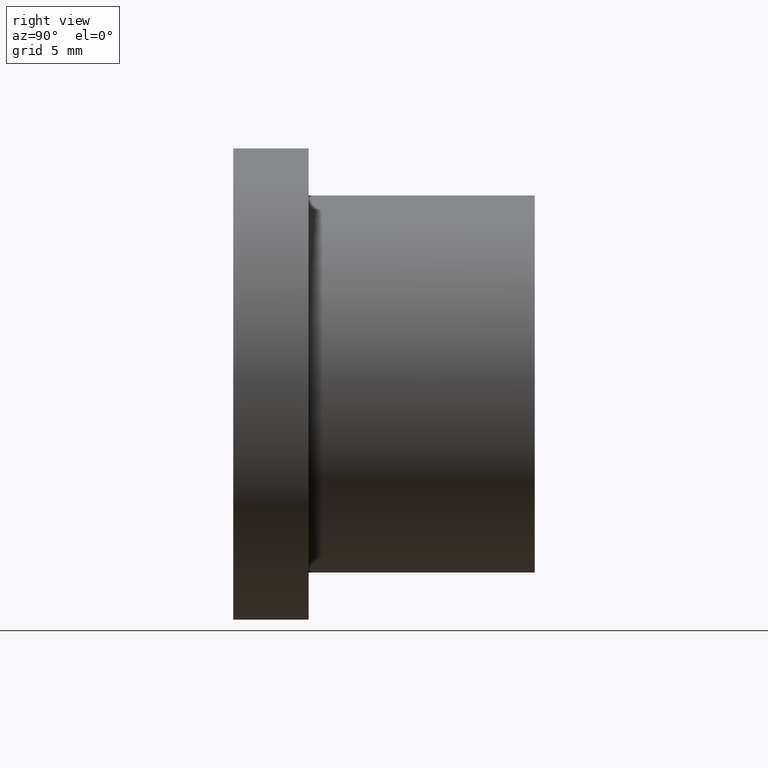
[diagram: clean part render]
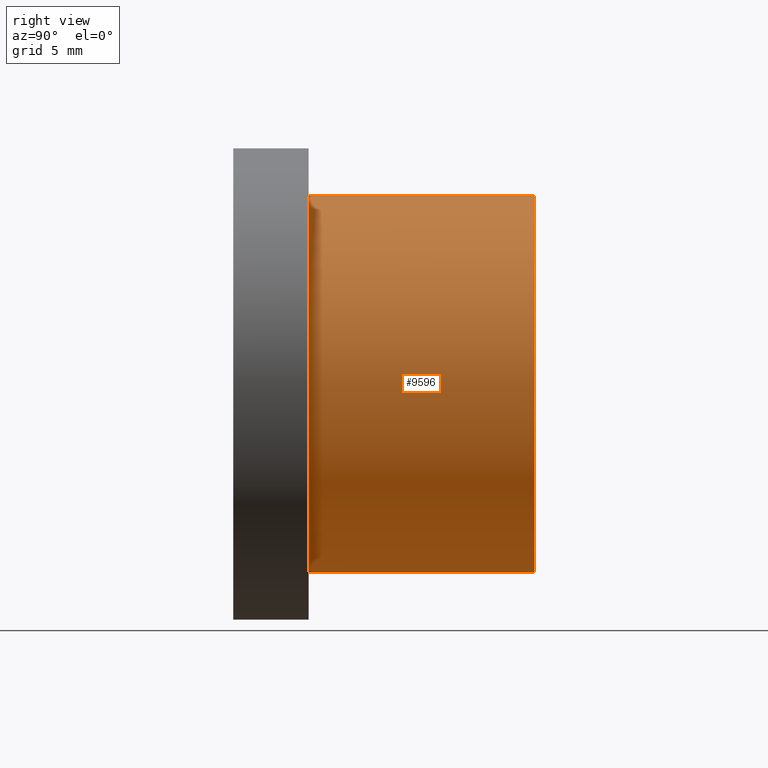
[diagram: same view with one face highlighted and labeled with its STEP entity id]
A machine part, right view. The second image highlights one B-rep face of the part: STEP entity #9596.
In plain terms, the highlighted cylindrical surface (bore or boss wall) has radius 10 mm, axis along (-0, -1, -0).
Its self-contained STEP definition (entity closure, byte-faithful):
#311 = EDGE_LOOP ( 'NONE', ( #10939 ) ) ;
#583 = AXIS2_PLACEMENT_3D ( 'NONE', #9425, #8403, #2266 ) ;
#822 = CARTESIAN_POINT ( 'NONE',  ( 0.0000000000000000000, 4.000000000000000000, 0.0000000000000000000 ) ) ;
#998 = CARTESIAN_POINT ( 'NONE',  ( 0.0000000000000000000, 0.0000000000000000000, 0.0000000000000000000 ) ) ;
#1191 = CIRCLE ( 'NONE', #3528, 9.999999999999998200 ) ;
#2266 = DIRECTION ( 'NONE',  ( 0.0000000000000000000, 0.0000000000000000000, -1.000000000000000000 ) ) ;
#2700 = EDGE_CURVE ( 'NONE', #8672, #8672, #4528, .T. ) ;
#2935 = ORIENTED_EDGE ( 'NONE', *, *, #7156, .F. ) ;
#3373 = DIRECTION ( 'NONE',  ( 0.0000000000000000000, 0.0000000000000000000, -1.000000000000000000 ) ) ;
#3528 = AXIS2_PLACEMENT_3D ( 'NONE', #822, #6195, #3373 ) ;
#3786 = DIRECTION ( 'NONE',  ( 0.0000000000000000000, 0.0000000000000000000, -1.000000000000000000 ) ) ;
#4268 = AXIS2_PLACEMENT_3D ( 'NONE', #998, #9993, #3786 ) ;
#4446 = FACE_OUTER_BOUND ( 'NONE', #311, .T. ) ;
#4528 = CIRCLE ( 'NONE', #583, 9.999999999999998200 ) ;
#5286 = CARTESIAN_POINT ( 'NONE',  ( 0.0000000000000000000, 16.00000000000000000, -9.999999999999998200 ) ) ;
#5450 = VERTEX_POINT ( 'NONE', #9600 ) ;
#6195 = DIRECTION ( 'NONE',  ( -0.0000000000000000000, -1.000000000000000000, -0.0000000000000000000 ) ) ;
#6378 = EDGE_LOOP ( 'NONE', ( #2935 ) ) ;
#7156 = EDGE_CURVE ( 'NONE', #5450, #5450, #1191, .T. ) ;
#8403 = DIRECTION ( 'NONE',  ( -0.0000000000000000000, -1.000000000000000000, -0.0000000000000000000 ) ) ;
#8663 = CYLINDRICAL_SURFACE ( 'NONE', #4268, 9.999999999999998200 ) ;
#8672 = VERTEX_POINT ( 'NONE', #5286 ) ;
#9425 = CARTESIAN_POINT ( 'NONE',  ( 0.0000000000000000000, 16.00000000000000000, 0.0000000000000000000 ) ) ;
#9596 = ADVANCED_FACE ( 'NONE', ( #4446, #9951 ), #8663, .T. ) ;
#9600 = CARTESIAN_POINT ( 'NONE',  ( 0.0000000000000000000, 4.000000000000000000, -9.999999999999998200 ) ) ;
#9951 = FACE_OUTER_BOUND ( 'NONE', #6378, .T. ) ;
#9993 = DIRECTION ( 'NONE',  ( -0.0000000000000000000, -1.000000000000000000, -0.0000000000000000000 ) ) ;
#10939 = ORIENTED_EDGE ( 'NONE', *, *, #2700, .T. ) ;